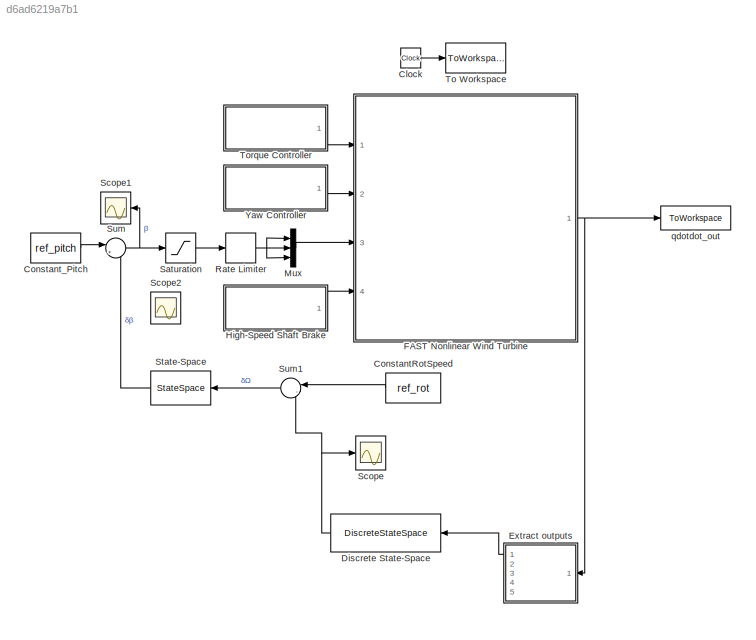
MODEL slx_d6ad6219a7b1
KIND model
CONFIG AbsTol = auto
CONFIG EnableMultiTasking = off
CONFIG FixedStep = auto
CONFIG MaxStep = auto
CONFIG MinStep = auto
CONFIG RelTol = 1e-3
CONFIG SampleTimeConstraint = Unconstrained
CONFIG Solver = VariableStepAuto
CONFIG SolverName = VariableStepAuto
CONFIG StartTime = 0.0
CONFIG StopTime = TMax
BLOCK [Clock] Clock
BLOCK [Constant] ConstantRotSpeed
  Value = ref_rot
BLOCK [Constant] Constant_Pitch
  Value = ref_pitch
BLOCK [DiscreteStateSpace] Discrete State-Space
  A = alpha
  B = 1-alpha
  C = alpha
  D = 1-alpha
  InitialCondition = ref_rot
  SampleTime = DT
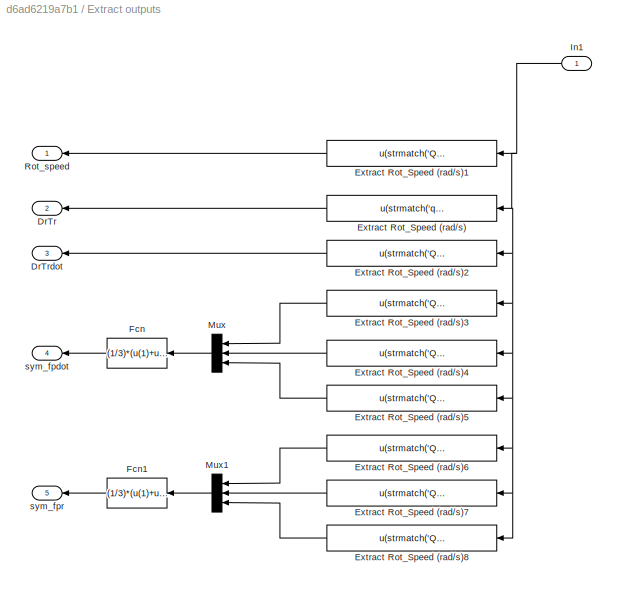
BLOCK [SubSystem] Extract outputs
  Ports = [1, 5]
  RequestExecContextInheritance = off
  Variant = off
BLOCK [Outport] Extract outputs/DrTr
  IconDisplay = Port number
  Port = 2
BLOCK [Outport] Extract outputs/DrTrdot
  IconDisplay = Port number
  Port = 3
BLOCK [Fcn] Extract outputs/Extract Rot_Speed (rad//s)
  Expr = u(strmatch('q_DrTr', OutList))
BLOCK [Fcn] Extract outputs/Extract Rot_Speed (rad//s)1
  Expr = u(strmatch('QD_GeAz', OutList))
BLOCK [Fcn] Extract outputs/Extract Rot_Speed (rad//s)2
  Expr = u(strmatch('QD_DrTr', OutList))
BLOCK [Fcn] Extract outputs/Extract Rot_Speed (rad//s)3
  Expr = u(strmatch('QD_B1F1', OutList))
BLOCK [Fcn] Extract outputs/Extract Rot_Speed (rad//s)4
  Expr = u(strmatch('QD_B2F1', OutList))
BLOCK [Fcn] Extract outputs/Extract Rot_Speed (rad//s)5
  Expr = u(strmatch('QD_B3F1', OutList))
BLOCK [Fcn] Extract outputs/Extract Rot_Speed (rad//s)6
  Expr = u(strmatch('Q_B1F1', OutList))
BLOCK [Fcn] Extract outputs/Extract Rot_Speed (rad//s)7
  Expr = u(strmatch('Q_B2F1', OutList))
BLOCK [Fcn] Extract outputs/Extract Rot_Speed (rad//s)8
  Expr = u(strmatch('Q_B3F1', OutList))
BLOCK [Fcn] Extract outputs/Fcn
  Expr = (1/3)*(u(1)+u(2)+u(3))
BLOCK [Fcn] Extract outputs/Fcn1
  Expr = (1/3)*(u(1)+u(2)+u(3))
BLOCK [Inport] Extract outputs/In1
  IconDisplay = Port number
BLOCK [Mux] Extract outputs/Mux
  DisplayOption = bar
  Inputs = 3
  Ports = [3, 1]
BLOCK [Mux] Extract outputs/Mux1
  DisplayOption = bar
  Inputs = 3
  Ports = [3, 1]
BLOCK [Outport] Extract outputs/Rot_speed
  IconDisplay = Port number
BLOCK [Outport] Extract outputs/sym_fpdot
  IconDisplay = Port number
  Port = 4
BLOCK [Outport] Extract outputs/sym_fpr
  IconDisplay = Port number
  Port = 5
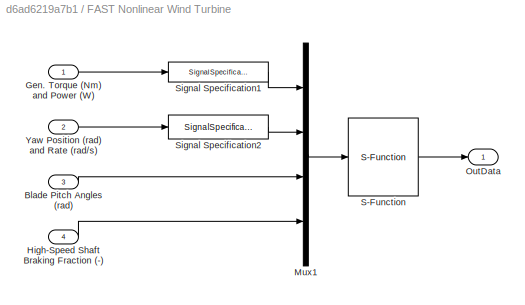
BLOCK [SubSystem] FAST Nonlinear Wind Turbine
  Ports = [4, 1]
  RequestExecContextInheritance = off
  Variant = off
BLOCK [Inport] FAST Nonlinear Wind Turbine/Blade Pitch Angles (rad)
  IconDisplay = Port number
  Port = 3
BLOCK [Inport] FAST Nonlinear Wind Turbine/Gen. Torque (Nm) and Power (W)
  IconDisplay = Port number
BLOCK [Inport] FAST Nonlinear Wind Turbine/High-Speed Shaft Braking Fraction (-)
  IconDisplay = Port number
  Port = 4
BLOCK [Mux] FAST Nonlinear Wind Turbine/Mux1
  DisplayOption = bar
  Ports = [4, 1]
BLOCK [Outport] FAST Nonlinear Wind Turbine/OutData
  IconDisplay = Port number
BLOCK [S-Function] FAST Nonlinear Wind Turbine/S-Function
  EnableBusSupport = off
  FunctionName = FAST_SFunc
  Parameters = FAST_InputFileName, TMax, 0
  Ports = [1, 1]
  SFcnIsStateOwnerBlock = off
  SFunctionDeploymentMode = off
BLOCK [SignalSpecification] FAST Nonlinear Wind Turbine/Signal Specification1
  Dimensions = 2
  OutDataTypeStr = double
  SignalType = real
BLOCK [SignalSpecification] FAST Nonlinear Wind Turbine/Signal Specification2
  Dimensions = 2
  OutDataTypeStr = double
  SignalType = real
BLOCK [Inport] FAST Nonlinear Wind Turbine/Yaw Position (rad) and Rate (rad//s)
  IconDisplay = Port number
  Port = 2
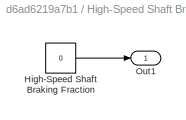
BLOCK [SubSystem] High-Speed Shaft Brake
  Ports = [0, 1]
  RequestExecContextInheritance = off
  Variant = off
BLOCK [Constant] High-Speed Shaft Brake/High-Speed Shaft Braking Fraction
  Value = 0
BLOCK [Outport] High-Speed Shaft Brake/Out1
  IconDisplay = Port number
BLOCK [Mux] Mux
  DisplayOption = bar
  Inputs = 3
  Ports = [3, 1]
BLOCK [RateLimiter] Rate Limiter
  FallingSlewLimit = -PC_MaxRat
  RisingSlewLimit = PC_MaxRat
  SampleTimeMode = inherited
BLOCK [Saturate] Saturation
  InputPortMap = u0
  LowerLimit = PC_MinPit
  Ports = [1, 1]
  UpperLimit = PC_MaxPit
BLOCK [Scope] Scope
  NumInputPorts = 1
  Ports = [1]
  ScopeSpecificationString = Simulink.scopes.TimeScopeBlockCfg('CurrentConfiguration', extmgr.ConfigurationSet(extmgr.Configuration('Core','General UI',true),extmgr.Configuration('Core','Source UI',true),extmgr.Configuration('Sources','WiredSimulink',true,'DataLoggingVariableName','ScopeData1'),extmgr.Configuration('Visuals','Time Domain',true,'SerializedDisplays',{struct('MinYLimReal','1.23903','MaxYLimReal','1.27583','YLabe...<+1430ch>
BLOCK [Scope] Scope1
  NumInputPorts = 1
  Ports = [1]
  ScopeSpecificationString = Simulink.scopes.TimeScopeBlockCfg('CurrentConfiguration', extmgr.ConfigurationSet(extmgr.Configuration('Core','General UI',true),extmgr.Configuration('Core','Source UI',true),extmgr.Configuration('Sources','WiredSimulink',true),extmgr.Configuration('Visuals','Time Domain',true,'SerializedDisplays',{struct('MinYLimReal','-1.30575','MaxYLimReal','1.67204','YLabelReal','','MinYLimMag','0.00000','MaxY...<+1372ch>
BLOCK [Scope] Scope2
  NumInputPorts = 1
  Ports = [1]
  ScopeSpecificationString = Simulink.scopes.TimeScopeBlockCfg('CurrentConfiguration', extmgr.ConfigurationSet(extmgr.Configuration('Core','General UI',true),extmgr.Configuration('Core','Source UI',true),extmgr.Configuration('Sources','WiredSimulink',true,'DataLoggingVariableName','ScopeData2'),extmgr.Configuration('Visuals','Time Domain',true,'SerializedDisplays',{struct('MinYLimReal','-0.1513','MaxYLimReal','0.35088','YLabe...<+1410ch>
BLOCK [StateSpace] State-Space
  A = Lbar
  B = Kbar'
  C = Gbar
  D = Dbar
  InitialCondition = 0
  Ports = [1, 1]
BLOCK [Sum] Sum
  IconShape = round
  InputSameDT = off
  Inputs = |++
  OutDataTypeStr = Inherit: Inherit via internal rule
  Ports = [2, 1]
  SaturateOnIntegerOverflow = off
BLOCK [Sum] Sum1
  IconShape = round
  InputSameDT = off
  Inputs = |-+
  OutDataTypeStr = Inherit: Inherit via internal rule
  Ports = [2, 1]
  SaturateOnIntegerOverflow = off
BLOCK [ToWorkspace] To Workspace
  MaxDataPoints = inf
  Ports = [1]
  SampleTime = -1
  VariableName = Time
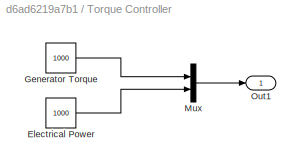
BLOCK [SubSystem] Torque Controller
  Ports = [0, 1]
  RequestExecContextInheritance = off
  Variant = off
BLOCK [Constant] Torque Controller/Electrical Power
  Value = 1000
BLOCK [Constant] Torque Controller/Generator Torque
  Value = 1000
BLOCK [Mux] Torque Controller/Mux
  DisplayOption = bar
  Inputs = 2
  Ports = [2, 1]
BLOCK [Outport] Torque Controller/Out1
  IconDisplay = Port number
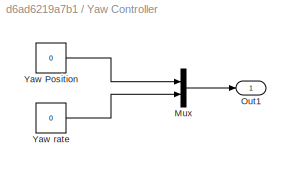
BLOCK [SubSystem] Yaw Controller
  Ports = [0, 1]
  RequestExecContextInheritance = off
  Variant = off
BLOCK [Mux] Yaw Controller/Mux
  DisplayOption = bar
  Inputs = 2
  Ports = [2, 1]
BLOCK [Outport] Yaw Controller/Out1
  IconDisplay = Port number
BLOCK [Constant] Yaw Controller/Yaw Position
  Value = 0
BLOCK [Constant] Yaw Controller/Yaw rate
  Value = 0
BLOCK [ToWorkspace] qdotdot_out
  MaxDataPoints = inf
  Ports = [1]
  SampleTime = -1
  VariableName = OutData
LINE Clock:1 -> To Workspace:1
LINE ConstantRotSpeed:1 -> Sum1:1
LINE Constant_Pitch:1 -> Sum:1
NET Discrete State-Space:1 -> Scope:1, Sum1:2
LINE Extract outputs/Extract Rot_Speed (rad//s)1:1 -> Extract outputs/Rot_speed:1
LINE Extract outputs/Extract Rot_Speed (rad//s)2:1 -> Extract outputs/DrTrdot:1
LINE Extract outputs/Extract Rot_Speed (rad//s)3:1 -> Extract outputs/Mux:1
LINE Extract outputs/Extract Rot_Speed (rad//s)4:1 -> Extract outputs/Mux:2
LINE Extract outputs/Extract Rot_Speed (rad//s)5:1 -> Extract outputs/Mux:3
LINE Extract outputs/Extract Rot_Speed (rad//s)6:1 -> Extract outputs/Mux1:1
LINE Extract outputs/Extract Rot_Speed (rad//s)7:1 -> Extract outputs/Mux1:2
LINE Extract outputs/Extract Rot_Speed (rad//s)8:1 -> Extract outputs/Mux1:3
LINE Extract outputs/Extract Rot_Speed (rad//s):1 -> Extract outputs/DrTr:1
LINE Extract outputs/Fcn1:1 -> Extract outputs/sym_fpr:1
LINE Extract outputs/Fcn:1 -> Extract outputs/sym_fpdot:1
NET Extract outputs/In1:1 -> Extract outputs/Extract Rot_Speed (rad//s)1:1, Extract outputs/Extract Rot_Speed (rad//s)2:1, Extract outputs/Extract Rot_Speed (rad//s)3:1, Extract outputs/Extract Rot_Speed (rad//s)4:1, Extract outputs/Extract Rot_Speed (rad//s)5:1, Extract outputs/Extract Rot_Speed (rad//s)6:1, Extract outputs/Extract Rot_Speed (rad//s)7:1, Extract outputs/Extract Rot_Speed (rad//s)8:1, Extract outputs/Extract Rot_Speed (rad//s):1
LINE Extract outputs/Mux1:1 -> Extract outputs/Fcn1:1
LINE Extract outputs/Mux:1 -> Extract outputs/Fcn:1
LINE Extract outputs:1 -> Discrete State-Space:1
LINE FAST Nonlinear Wind Turbine/Blade Pitch Angles (rad):1 -> FAST Nonlinear Wind Turbine/Mux1:3
LINE FAST Nonlinear Wind Turbine/Gen. Torque (Nm) and Power (W):1 -> FAST Nonlinear Wind Turbine/Signal Specification1:1
LINE FAST Nonlinear Wind Turbine/High-Speed Shaft Braking Fraction (-):1 -> FAST Nonlinear Wind Turbine/Mux1:4
LINE FAST Nonlinear Wind Turbine/Mux1:1 -> FAST Nonlinear Wind Turbine/S-Function:1
LINE FAST Nonlinear Wind Turbine/S-Function:1 -> FAST Nonlinear Wind Turbine/OutData:1
LINE FAST Nonlinear Wind Turbine/Signal Specification1:1 -> FAST Nonlinear Wind Turbine/Mux1:1
LINE FAST Nonlinear Wind Turbine/Signal Specification2:1 -> FAST Nonlinear Wind Turbine/Mux1:2
LINE FAST Nonlinear Wind Turbine/Yaw Position (rad) and Rate (rad//s):1 -> FAST Nonlinear Wind Turbine/Signal Specification2:1
NET FAST Nonlinear Wind Turbine:1 -> Extract outputs:1, qdotdot_out:1
LINE High-Speed Shaft Brake/High-Speed Shaft Braking Fraction:1 -> High-Speed Shaft Brake/Out1:1
LINE High-Speed Shaft Brake:1 -> FAST Nonlinear Wind Turbine:4
LINE Mux:1 -> FAST Nonlinear Wind Turbine:3
NET Rate Limiter:1 -> Mux:1, Mux:2, Mux:3
LINE Saturation:1 -> Rate Limiter:1
LINE State-Space:1 -> Sum:2
LINE Sum1:1 -> State-Space:1
NET Sum:1 -> Saturation:1, Scope1:1
LINE Torque Controller/Electrical Power:1 -> Torque Controller/Mux:2
LINE Torque Controller/Generator Torque:1 -> Torque Controller/Mux:1
LINE Torque Controller/Mux:1 -> Torque Controller/Out1:1
LINE Torque Controller:1 -> FAST Nonlinear Wind Turbine:1
LINE Yaw Controller/Mux:1 -> Yaw Controller/Out1:1
LINE Yaw Controller/Yaw Position:1 -> Yaw Controller/Mux:1
LINE Yaw Controller/Yaw rate:1 -> Yaw Controller/Mux:2
LINE Yaw Controller:1 -> FAST Nonlinear Wind Turbine:2
note: NET lines group one-source signal fan-out (src -> all destinations, sorted); 1:1 wires keep LINE
